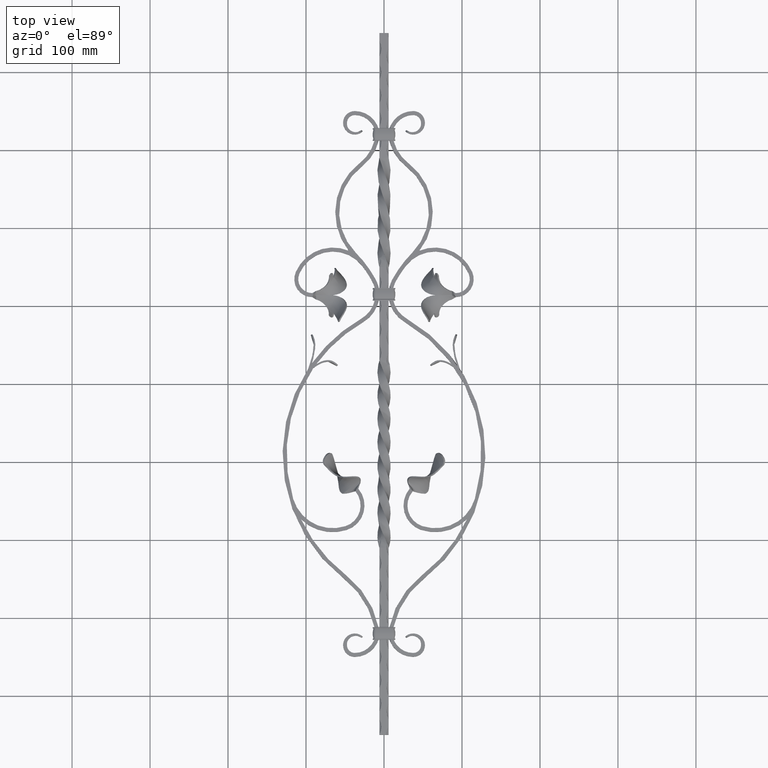
[diagram: clean part render]
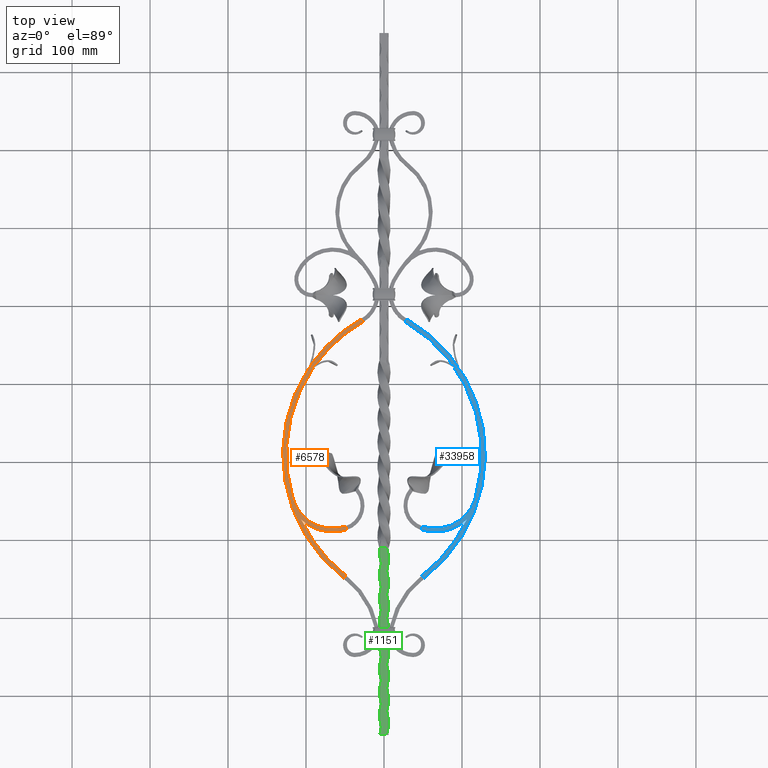
[diagram: same view with three faces highlighted in distinct colors, each labeled with its STEP entity id]
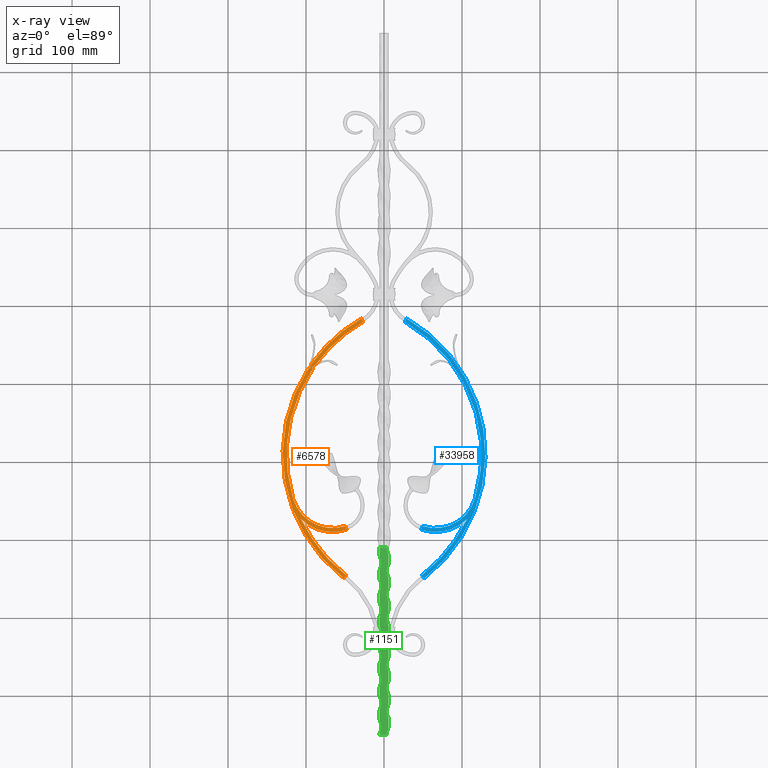
[diagram: x-ray of the same camera — body ghosted, the three highlighted faces saturated]
A machine part, top view with three faces highlighted in distinct colors.
The next image is the same camera in x-ray (body ghosted, the three faces saturated) — at least one of them is partly hidden behind the body in this view.
Their STEP definitions:

[orange] entity #6578 — the highlighted planar face has unit normal (0, 0, 1).
#59 = DIRECTION ( 'NONE',  ( -0.4972331834549501561, 0.8676169438590144445, 0.000000000000000000 ) ) ;
#482 = EDGE_CURVE ( 'NONE', #54759, #30427, #25481, .T. ) ;
#1108 = EDGE_CURVE ( 'NONE', #9635, #35715, #8890, .T. ) ;
#2405 = DIRECTION ( 'NONE',  ( -0.9563022665386825549, -0.2923798471389205678, 0.000000000000000000 ) ) ;
#2841 = CARTESIAN_POINT ( 'NONE',  ( -47.74672717694629398, -187.1293661279631237, 6.000000000000000000 ) ) ;
#3028 = DIRECTION ( 'NONE',  ( 0.000000000000000000, 0.000000000000000000, 1.000000000000000000 ) ) ;
#3937 = CARTESIAN_POINT ( 'NONE',  ( 70.62453861500259222, -90.29945903481983294, 6.000000000000000000 ) ) ;
#3974 = ORIENTED_EDGE ( 'NONE', *, *, #18180, .T. ) ;
#6578 = ADVANCED_FACE ( 'NONE', ( #25227 ), #54861, .T. ) ;
#7062 = DIRECTION ( 'NONE',  ( -0.6093817276569273300, -0.7928769828906994110, 0.000000000000000000 ) ) ;
#7070 = LINE ( 'NONE', #29316, #37571 ) ;
#7109 = CARTESIAN_POINT ( 'NONE',  ( 70.62453861500259222, -90.29945903481983294, 6.000000000000000000 ) ) ;
#7809 = EDGE_CURVE ( 'NONE', #18725, #35715, #34833, .T. ) ;
#8628 = EDGE_CURVE ( 'NONE', #46410, #54759, #15224, .T. ) ;
#8890 = CIRCLE ( 'NONE', #43589, 200.6245386149037415 ) ;
#9635 = VERTEX_POINT ( 'NONE', #48870 ) ;
#9883 = ORIENTED_EDGE ( 'NONE', *, *, #1108, .T. ) ;
#10587 = ORIENTED_EDGE ( 'NONE', *, *, #29252, .T. ) ;
#11151 = EDGE_CURVE ( 'NONE', #26390, #31978, #38905, .T. ) ;
#11298 = CARTESIAN_POINT ( 'NONE',  ( -89.23659570273460417, 23.76530580994442587, 6.000000000000000000 ) ) ;
#11328 = CARTESIAN_POINT ( 'NONE',  ( -48.58548069823670801, -245.4056529911898679, 6.000000000000000000 ) ) ;
#11384 = EDGE_CURVE ( 'NONE', #18725, #52367, #7070, .T. ) ;
#12502 = B_SPLINE_CURVE_WITH_KNOTS ( 'NONE', 3,
 ( #27622, #11298, #19304, #35977 ),
 .UNSPECIFIED., .F., .F.,
 ( 4, 4 ),
 ( 0.03132615248084846121, 0.03769082985827838794 ),
 .UNSPECIFIED. ) ;
#12675 = CARTESIAN_POINT ( 'NONE',  ( -96.95898724179710371, 19.99998500660017697, 6.000000000000000000 ) ) ;
#14213 = CARTESIAN_POINT ( 'NONE',  ( -48.58548069823672222, -245.4056529911898394, 6.000000000000000000 ) ) ;
#14224 = VECTOR ( 'NONE', #53511, 1000.000000000000000 ) ;
#14732 = EDGE_CURVE ( 'NONE', #34782, #30427, #41571, .T. ) ;
#15224 = CIRCLE ( 'NONE', #25042, 53.00000000000211742 ) ;
#15680 = AXIS2_PLACEMENT_3D ( 'NONE', #22815, #27054, #39138 ) ;
#16089 = CARTESIAN_POINT ( 'NONE',  ( 70.62453861500259222, -90.29945903481983294, 6.000000000000000000 ) ) ;
#16723 = DIRECTION ( 'NONE',  ( -0.8353092149828044155, 0.5497804246831737851, -0.000000000000000000 ) ) ;
#17862 = LINE ( 'NONE', #48102, #23154 ) ;
#18151 = ORIENTED_EDGE ( 'NONE', *, *, #41611, .F. ) ;
#18180 = EDGE_CURVE ( 'NONE', #51744, #9635, #25181, .T. ) ;
#18725 = VERTEX_POINT ( 'NONE', #37698 ) ;
#19304 = CARTESIAN_POINT ( 'NONE',  ( -90.94213846535360801, 22.48823995927978814, 6.000000000000001776 ) ) ;
#20041 = ORIENTED_EDGE ( 'NONE', *, *, #8628, .F. ) ;
#20220 = CIRCLE ( 'NONE', #26485, 195.6245386149036847 ) ;
#20361 = DIRECTION ( 'NONE',  ( -0.4972331834549500451, 0.8676169438590143335, 0.000000000000000000 ) ) ;
#20576 = CARTESIAN_POINT ( 'NONE',  ( -93.48625912757735534, 23.78947908224890995, 6.000000000000000000 ) ) ;
#21619 = ORIENTED_EDGE ( 'NONE', *, *, #54484, .F. ) ;
#22668 = DIRECTION ( 'NONE',  ( -0.4972331834549501561, 0.8676169438590144445, 0.000000000000000000 ) ) ;
#22815 = CARTESIAN_POINT ( 'NONE',  ( -65.76763092655829723, -131.9999998333333338, 6.000000000000000000 ) ) ;
#22950 = DIRECTION ( 'NONE',  ( -0.4972331834549501561, 0.8676169438590142224, 0.000000000000000000 ) ) ;
#23154 = VECTOR ( 'NONE', #38825, 1000.000000000000114 ) ;
#23182 = VECTOR ( 'NONE', #22950, 1000.000000000000114 ) ;
#23574 = DIRECTION ( 'NONE',  ( 0.000000000000000000, 0.000000000000000000, 1.000000000000000000 ) ) ;
#23839 = CARTESIAN_POINT ( 'NONE',  ( -116.4516510530138902, -147.4961317316671909, 6.000000000000000000 ) ) ;
#23895 = CARTESIAN_POINT ( 'NONE',  ( -49.30025336225403265, -182.3768345508388791, 6.000000000000000000 ) ) ;
#25042 = AXIS2_PLACEMENT_3D ( 'NONE', #35982, #23574, #2405 ) ;
#25090 = ORIENTED_EDGE ( 'NONE', *, *, #49567, .T. ) ;
#25181 = LINE ( 'NONE', #26827, #23182 ) ;
#25227 = FACE_OUTER_BOUND ( 'NONE', #34413, .T. ) ;
#25481 = LINE ( 'NONE', #2841, #14224 ) ;
#25625 = VECTOR ( 'NONE', #7062, 1000.000000000000000 ) ;
#26170 = AXIS2_PLACEMENT_3D ( 'NONE', #3937, #29580, #59 ) ;
#26390 = VERTEX_POINT ( 'NONE', #14213 ) ;
#26485 = AXIS2_PLACEMENT_3D ( 'NONE', #39735, #44015, #35116 ) ;
#26827 = CARTESIAN_POINT ( 'NONE',  ( -26.64647348231380519, 79.42770530193665479, 6.000000000000000000 ) ) ;
#27023 = CARTESIAN_POINT ( 'NONE',  ( -92.59144619845592672, 21.12764971388410018, 6.000000000000000888 ) ) ;
#27038 = CIRCLE ( 'NONE', #49179, 195.6245386149036847 ) ;
#27054 = DIRECTION ( 'NONE',  ( 0.000000000000000000, 0.000000000000000000, 1.000000000000000000 ) ) ;
#27336 = ORIENTED_EDGE ( 'NONE', *, *, #11384, .T. ) ;
#27622 = CARTESIAN_POINT ( 'NONE',  ( -87.45822995308775205, 24.93420961345997711, 6.000000000000000000 ) ) ;
#27827 = ORIENTED_EDGE ( 'NONE', *, *, #11151, .F. ) ;
#28413 = EDGE_CURVE ( 'NONE', #34782, #26390, #27038, .T. ) ;
#29252 = EDGE_CURVE ( 'NONE', #52367, #31978, #44247, .T. ) ;
#29258 = CARTESIAN_POINT ( 'NONE',  ( -26.64647348239179792, 79.42770530207266688, 6.000000000000000000 ) ) ;
#29316 = CARTESIAN_POINT ( 'NONE',  ( -96.95898724173160588, 19.99998500655711453, 6.000000000000000000 ) ) ;
#29580 = DIRECTION ( 'NONE',  ( 0.000000000000000000, 0.000000000000000000, 1.000000000000000000 ) ) ;
#30195 = VERTEX_POINT ( 'NONE', #46818 ) ;
#30427 = VERTEX_POINT ( 'NONE', #41754 ) ;
#30600 = AXIS2_PLACEMENT_3D ( 'NONE', #29258, #42391, #46852 ) ;
#31776 = EDGE_CURVE ( 'NONE', #30195, #46410, #20220, .T. ) ;
#31978 = VERTEX_POINT ( 'NONE', #36758 ) ;
#32391 = ORIENTED_EDGE ( 'NONE', *, *, #28413, .F. ) ;
#32709 = DIRECTION ( 'NONE',  ( -0.4972331834549500451, 0.8676169438590143335, 0.000000000000000000 ) ) ;
#33127 = DIRECTION ( 'NONE',  ( 0.000000000000000000, 0.000000000000000000, 1.000000000000000000 ) ) ;
#34413 = EDGE_LOOP ( 'NONE', ( #21619, #18151, #3974, #9883, #37972, #27336, #10587, #27827, #32391, #41704, #45074, #20041, #48738, #25090 ) ) ;
#34782 = VERTEX_POINT ( 'NONE', #48142 ) ;
#34833 = B_SPLINE_CURVE_WITH_KNOTS ( 'NONE', 3,
 ( #46691, #54507, #20576, #42032 ),
 .UNSPECIFIED., .F., .F.,
 ( 4, 4 ),
 ( 0.000000000000000000, 0.007814242277812792625 ),
 .UNSPECIFIED. ) ;
#35116 = DIRECTION ( 'NONE',  ( -0.4972331834549501561, 0.8676169438590144445, 0.000000000000000000 ) ) ;
#35715 = VERTEX_POINT ( 'NONE', #52292 ) ;
#35977 = CARTESIAN_POINT ( 'NONE',  ( -92.59144619845592672, 21.12764971388410018, 6.000000000000000888 ) ) ;
#35982 = CARTESIAN_POINT ( 'NONE',  ( -65.76763092655829723, -131.9999998333333338, 6.000000000000000000 ) ) ;
#36758 = CARTESIAN_POINT ( 'NONE',  ( -51.63238933652131379, -249.3700379056433860, 6.000000000000000000 ) ) ;
#37571 = VECTOR ( 'NONE', #16723, 1000.000000000000227 ) ;
#37698 = CARTESIAN_POINT ( 'NONE',  ( -95.28836881176600571, 18.90042415719076985, 6.000000000000000000 ) ) ;
#37972 = ORIENTED_EDGE ( 'NONE', *, *, #7809, .F. ) ;
#38825 = DIRECTION ( 'NONE',  ( -0.8258892643461988037, 0.5638323536634756161, -0.000000000000000000 ) ) ;
#38905 = LINE ( 'NONE', #11328, #25625 ) ;
#39138 = DIRECTION ( 'NONE',  ( -0.9563022665387032051, -0.2923798471388528442, 0.000000000000000000 ) ) ;
#39735 = CARTESIAN_POINT ( 'NONE',  ( 70.62453861500259222, -90.29945903481983294, 6.000000000000000000 ) ) ;
#40218 = VERTEX_POINT ( 'NONE', #46970 ) ;
#41571 = CIRCLE ( 'NONE', #15680, 58.00000000000212452 ) ;
#41611 = EDGE_CURVE ( 'NONE', #51744, #40218, #52974, .T. ) ;
#41704 = ORIENTED_EDGE ( 'NONE', *, *, #14732, .T. ) ;
#41754 = CARTESIAN_POINT ( 'NONE',  ( -47.74672717694629398, -187.1293661279631522, 6.000000000000000000 ) ) ;
#42032 = CARTESIAN_POINT ( 'NONE',  ( -92.66564212601250006, 26.26177966832284838, 6.000000000000001776 ) ) ;
#42391 = DIRECTION ( 'NONE',  ( 0.000000000000000000, 0.000000000000000000, 1.000000000000000000 ) ) ;
#43240 = CARTESIAN_POINT ( 'NONE',  ( -26.64647348231383006, 79.42770530193668321, 6.000000000000000000 ) ) ;
#43498 = AXIS2_PLACEMENT_3D ( 'NONE', #7109, #3028, #32709 ) ;
#43589 = AXIS2_PLACEMENT_3D ( 'NONE', #16089, #33127, #20361 ) ;
#44015 = DIRECTION ( 'NONE',  ( 0.000000000000000000, 0.000000000000000000, 1.000000000000000000 ) ) ;
#44156 = CARTESIAN_POINT ( 'NONE',  ( 70.62453861500259222, -90.29945903481983294, 6.000000000000000000 ) ) ;
#44247 = CIRCLE ( 'NONE', #43498, 200.6245386149037415 ) ;
#45074 = ORIENTED_EDGE ( 'NONE', *, *, #482, .F. ) ;
#46410 = VERTEX_POINT ( 'NONE', #23839 ) ;
#46691 = CARTESIAN_POINT ( 'NONE',  ( -95.28836881176600571, 18.90042415719076985, 6.000000000000000000 ) ) ;
#46818 = CARTESIAN_POINT ( 'NONE',  ( -90.93966766976352289, 19.99998500655714295, 6.000000000000000888 ) ) ;
#46852 = DIRECTION ( 'NONE',  ( 1.000000000000000000, 0.000000000000000000, -0.000000000000000000 ) ) ;
#46970 = CARTESIAN_POINT ( 'NONE',  ( -87.45822995308775205, 24.93420961345997711, 6.000000000000000000 ) ) ;
#48071 = DIRECTION ( 'NONE',  ( 0.000000000000000000, 0.000000000000000000, 1.000000000000000000 ) ) ;
#48102 = CARTESIAN_POINT ( 'NONE',  ( -92.59144619845592672, 21.12764971388409663, 6.000000000000000000 ) ) ;
#48142 = CARTESIAN_POINT ( 'NONE',  ( -106.5441543421316908, -173.2465165121929545, 6.000000000000000000 ) ) ;
#48738 = ORIENTED_EDGE ( 'NONE', *, *, #31776, .F. ) ;
#48870 = CARTESIAN_POINT ( 'NONE',  ( -29.13263939958855531, 83.76579002123176565, 6.000000000000000000 ) ) ;
#49179 = AXIS2_PLACEMENT_3D ( 'NONE', #44156, #48071, #22668 ) ;
#49567 = EDGE_CURVE ( 'NONE', #30195, #53201, #17862, .T. ) ;
#51744 = VERTEX_POINT ( 'NONE', #43240 ) ;
#52292 = CARTESIAN_POINT ( 'NONE',  ( -92.66564212601250006, 26.26177966832284838, 6.000000000000001776 ) ) ;
#52367 = VERTEX_POINT ( 'NONE', #12675 ) ;
#52974 = CIRCLE ( 'NONE', #26170, 195.6245386149036847 ) ;
#53201 = VERTEX_POINT ( 'NONE', #27023 ) ;
#53511 = DIRECTION ( 'NONE',  ( 0.3107052370615501213, -0.9505063154248507562, 0.000000000000000000 ) ) ;
#54484 = EDGE_CURVE ( 'NONE', #40218, #53201, #12502, .T. ) ;
#54507 = CARTESIAN_POINT ( 'NONE',  ( -94.37040545000472491, 21.33911354149103445, 6.000000000000000000 ) ) ;
#54759 = VERTEX_POINT ( 'NONE', #23895 ) ;
#54861 = PLANE ( 'NONE',  #30600 ) ;

[blue] entity #33958 — the highlighted planar face has unit normal (0, 0, 1).
#468 = CARTESIAN_POINT ( 'NONE',  ( 106.5441543421316624, -173.2465165121929260, 6.000000000000000000 ) ) ;
#741 = DIRECTION ( 'NONE',  ( -0.000000000000000000, -0.000000000000000000, -1.000000000000000000 ) ) ;
#2810 = DIRECTION ( 'NONE',  ( 0.4972331834549501561, 0.8676169438590144445, 0.000000000000000000 ) ) ;
#3513 = FACE_OUTER_BOUND ( 'NONE', #28210, .T. ) ;
#3666 = VECTOR ( 'NONE', #46868, 1000.000000000000000 ) ;
#4290 = DIRECTION ( 'NONE',  ( -0.000000000000000000, -0.000000000000000000, -1.000000000000000000 ) ) ;
#5988 = CARTESIAN_POINT ( 'NONE',  ( 51.63238933652131379, -249.3700379056433860, 6.000000000000000000 ) ) ;
#6979 = VERTEX_POINT ( 'NONE', #27120 ) ;
#7016 = CARTESIAN_POINT ( 'NONE',  ( 116.4516510530138902, -147.4961317316671909, 6.000000000000000000 ) ) ;
#7191 = AXIS2_PLACEMENT_3D ( 'NONE', #51595, #51404, #17662 ) ;
#8293 = ORIENTED_EDGE ( 'NONE', *, *, #51730, .T. ) ;
#8737 = DIRECTION ( 'NONE',  ( 0.4972331834549500451, 0.8676169438590143335, 0.000000000000000000 ) ) ;
#9724 = VERTEX_POINT ( 'NONE', #5988 ) ;
#11940 = CARTESIAN_POINT ( 'NONE',  ( 26.64647348231383006, 79.42770530193668321, 6.000000000000000000 ) ) ;
#12561 = EDGE_CURVE ( 'NONE', #43610, #9724, #21167, .T. ) ;
#13635 = VECTOR ( 'NONE', #50836, 1000.000000000000114 ) ;
#14415 = ORIENTED_EDGE ( 'NONE', *, *, #26602, .T. ) ;
#15491 = CARTESIAN_POINT ( 'NONE',  ( 47.74672717694629398, -187.1293661279631522, 6.000000000000000000 ) ) ;
#15549 = AXIS2_PLACEMENT_3D ( 'NONE', #53292, #52924, #35473 ) ;
#17616 = DIRECTION ( 'NONE',  ( 1.000000000000000000, 0.000000000000000000, -0.000000000000000000 ) ) ;
#17643 = AXIS2_PLACEMENT_3D ( 'NONE', #26104, #38537, #17616 ) ;
#17662 = DIRECTION ( 'NONE',  ( 0.9563022665386825549, -0.2923798471389205678, 0.000000000000000000 ) ) ;
#17680 = CARTESIAN_POINT ( 'NONE',  ( -70.62453861500259222, -90.29945903481983294, 6.000000000000000000 ) ) ;
#19601 = LINE ( 'NONE', #42089, #13635 ) ;
#19702 = CIRCLE ( 'NONE', #7191, 53.00000000000211742 ) ;
#21167 = CIRCLE ( 'NONE', #24828, 200.6245386149037415 ) ;
#21538 = LINE ( 'NONE', #52675, #36808 ) ;
#22245 = PLANE ( 'NONE',  #17643 ) ;
#22520 = AXIS2_PLACEMENT_3D ( 'NONE', #53850, #37308, #2810 ) ;
#22806 = DIRECTION ( 'NONE',  ( 0.3107052370615501213, 0.9505063154248507562, -0.000000000000000000 ) ) ;
#23678 = ORIENTED_EDGE ( 'NONE', *, *, #52083, .F. ) ;
#24684 = EDGE_CURVE ( 'NONE', #26233, #37841, #30571, .T. ) ;
#24828 = AXIS2_PLACEMENT_3D ( 'NONE', #17680, #741, #8737 ) ;
#25801 = CIRCLE ( 'NONE', #33624, 195.6245386149036847 ) ;
#26104 = CARTESIAN_POINT ( 'NONE',  ( 26.64647348239179792, 79.42770530207266688, 6.000000000000000000 ) ) ;
#26233 = VERTEX_POINT ( 'NONE', #468 ) ;
#26602 = EDGE_CURVE ( 'NONE', #44776, #51973, #25801, .T. ) ;
#27120 = CARTESIAN_POINT ( 'NONE',  ( 49.30025336225403265, -182.3768345508388791, 6.000000000000000000 ) ) ;
#28210 = EDGE_LOOP ( 'NONE', ( #23678, #40222, #47074, #14415, #8293, #28935, #32676, #30879 ) ) ;
#28935 = ORIENTED_EDGE ( 'NONE', *, *, #45858, .F. ) ;
#29524 = CARTESIAN_POINT ( 'NONE',  ( 29.13263939958855531, 83.76579002123176565, 6.000000000000000000 ) ) ;
#29745 = DIRECTION ( 'NONE',  ( 0.4972331834549501561, 0.8676169438590144445, 0.000000000000000000 ) ) ;
#30514 = CARTESIAN_POINT ( 'NONE',  ( 48.58548069823672222, -245.4056529911898394, 6.000000000000000000 ) ) ;
#30571 = CIRCLE ( 'NONE', #15549, 58.00000000000212452 ) ;
#30879 = ORIENTED_EDGE ( 'NONE', *, *, #45085, .T. ) ;
#32676 = ORIENTED_EDGE ( 'NONE', *, *, #24684, .F. ) ;
#33624 = AXIS2_PLACEMENT_3D ( 'NONE', #33819, #4290, #29745 ) ;
#33819 = CARTESIAN_POINT ( 'NONE',  ( -70.62453861500259222, -90.29945903481983294, 6.000000000000000000 ) ) ;
#33958 = ADVANCED_FACE ( 'NONE', ( #3513 ), #22245, .T. ) ;
#35473 = DIRECTION ( 'NONE',  ( 0.9563022665387032051, -0.2923798471388528442, 0.000000000000000000 ) ) ;
#36808 = VECTOR ( 'NONE', #22806, 1000.000000000000000 ) ;
#37308 = DIRECTION ( 'NONE',  ( -0.000000000000000000, -0.000000000000000000, -1.000000000000000000 ) ) ;
#37841 = VERTEX_POINT ( 'NONE', #15491 ) ;
#38537 = DIRECTION ( 'NONE',  ( 0.000000000000000000, 0.000000000000000000, 1.000000000000000000 ) ) ;
#40222 = ORIENTED_EDGE ( 'NONE', *, *, #12561, .F. ) ;
#42089 = CARTESIAN_POINT ( 'NONE',  ( 26.64647348231380519, 79.42770530193665479, 6.000000000000000000 ) ) ;
#42410 = CARTESIAN_POINT ( 'NONE',  ( 48.58548069823670801, -245.4056529911898679, 6.000000000000000000 ) ) ;
#43610 = VERTEX_POINT ( 'NONE', #29524 ) ;
#44776 = VERTEX_POINT ( 'NONE', #11940 ) ;
#45085 = EDGE_CURVE ( 'NONE', #26233, #55063, #50833, .T. ) ;
#45654 = EDGE_CURVE ( 'NONE', #43610, #44776, #19601, .T. ) ;
#45858 = EDGE_CURVE ( 'NONE', #37841, #6979, #21538, .T. ) ;
#46868 = DIRECTION ( 'NONE',  ( -0.6093817276569273300, 0.7928769828906994110, -0.000000000000000000 ) ) ;
#47074 = ORIENTED_EDGE ( 'NONE', *, *, #45654, .T. ) ;
#50833 = CIRCLE ( 'NONE', #22520, 195.6245386149036847 ) ;
#50836 = DIRECTION ( 'NONE',  ( -0.4972331834549501561, -0.8676169438590142224, -0.000000000000000000 ) ) ;
#51404 = DIRECTION ( 'NONE',  ( -0.000000000000000000, -0.000000000000000000, -1.000000000000000000 ) ) ;
#51595 = CARTESIAN_POINT ( 'NONE',  ( 65.76763092655829723, -131.9999998333333338, 6.000000000000000000 ) ) ;
#51730 = EDGE_CURVE ( 'NONE', #51973, #6979, #19702, .T. ) ;
#51973 = VERTEX_POINT ( 'NONE', #7016 ) ;
#52083 = EDGE_CURVE ( 'NONE', #9724, #55063, #52868, .T. ) ;
#52675 = CARTESIAN_POINT ( 'NONE',  ( 47.74672717694629398, -187.1293661279631237, 6.000000000000000000 ) ) ;
#52868 = LINE ( 'NONE', #42410, #3666 ) ;
#52924 = DIRECTION ( 'NONE',  ( -0.000000000000000000, -0.000000000000000000, -1.000000000000000000 ) ) ;
#53292 = CARTESIAN_POINT ( 'NONE',  ( 65.76763092655829723, -131.9999998333333338, 6.000000000000000000 ) ) ;
#53850 = CARTESIAN_POINT ( 'NONE',  ( -70.62453861500259222, -90.29945903481983294, 6.000000000000000000 ) ) ;
#55063 = VERTEX_POINT ( 'NONE', #30514 ) ;

[green] entity #1151 — the highlighted planar face has unit normal (-0, -0, -1).
#310 = B_SPLINE_CURVE_WITH_KNOTS ( 'NONE', 3,
 ( #33678, #50573, #12901, #8441 ),
 .UNSPECIFIED., .F., .F.,
 ( 4, 4 ),
 ( 0.000000000000000000, 0.04166666651396455645 ),
 .UNSPECIFIED. ) ;
#435 = ORIENTED_EDGE ( 'NONE', *, *, #40388, .F. ) ;
#533 = EDGE_CURVE ( 'NONE', #1629, #34175, #53993, .T. ) ;
#865 = CARTESIAN_POINT ( 'NONE',  ( -5.999999999685654117, -329.9999999999994316, 6.000000000314337001 ) ) ;
#1151 = ADVANCED_FACE ( 'NONE', ( #45370 ), #34916, .F. ) ;
#1367 = DIRECTION ( 'NONE',  ( -1.000000000000000000, 0.000000000000000000, 5.239015920434916151E-11 ) ) ;
#1430 = CARTESIAN_POINT ( 'NONE',  ( -5.999999999685655006, -303.3333333333332575, 6.000000000314337001 ) ) ;
#1629 = VERTEX_POINT ( 'NONE', #45591 ) ;
#2092 = EDGE_CURVE ( 'NONE', #10571, #44928, #7399, .T. ) ;
#2246 = CARTESIAN_POINT ( 'NONE',  ( 24.75000000031412384, -450.0000000000000000, 5.999999998703585469 ) ) ;
#2273 = CARTESIAN_POINT ( 'NONE',  ( 6.000000000314342330, -376.6666666666669130, 5.999999999685655006 ) ) ;
#2474 = DIRECTION ( 'NONE',  ( -1.000000000000000000, -5.224578939412492272E-15, 5.239015920434916151E-11 ) ) ;
#2815 = CARTESIAN_POINT ( 'NONE',  ( -24.74999999968595077, -410.0000000000000000, 6.000000001296407426 ) ) ;
#3159 = EDGE_CURVE ( 'NONE', #18377, #26074, #12781, .T. ) ;
#3668 = EDGE_CURVE ( 'NONE', #12205, #30175, #37630, .T. ) ;
#3803 = CARTESIAN_POINT ( 'NONE',  ( 0.3333333336475076125, -450.0000000000000568, 5.999999999982533083 ) ) ;
#3811 = CIRCLE ( 'NONE', #11552, 21.25000000000003553 ) ;
#3894 = EDGE_CURVE ( 'NONE', #23947, #10571, #17453, .T. ) ;
#3987 = CARTESIAN_POINT ( 'NONE',  ( -24.74999999968594722, -259.9999999999999432, 6.000000001296407426 ) ) ;
#4227 = EDGE_CURVE ( 'NONE', #21863, #52392, #310, .T. ) ;
#4284 = CIRCLE ( 'NONE', #15147, 21.25000000000003908 ) ;
#4368 = EDGE_CURVE ( 'NONE', #7644, #6498, #30042, .T. ) ;
#4527 = CARTESIAN_POINT ( 'NONE',  ( -24.74999999968595077, -379.9999999999999432, 6.000000001296407426 ) ) ;
#4535 = CARTESIAN_POINT ( 'NONE',  ( 6.000000000314090087, -320.0000000000000000, 5.999999999685901919 ) ) ;
#4567 = DIRECTION ( 'NONE',  ( -1.000000000000000000, 5.224578939412492272E-15, 5.239015920434916151E-11 ) ) ;
#4573 = DIRECTION ( 'NONE',  ( 5.239016895960169455E-11, 8.731861808807583131E-21, 1.000000000000000000 ) ) ;
#4627 = ORIENTED_EDGE ( 'NONE', *, *, #23577, .T. ) ;
#5164 = AXIS2_PLACEMENT_3D ( 'NONE', #14761, #14578, #36256 ) ;
#5309 = CARTESIAN_POINT ( 'NONE',  ( 6.000000000314090975, -229.9999999999999147, 5.999999999685901919 ) ) ;
#5603 = CARTESIAN_POINT ( 'NONE',  ( -5.999999999685655006, -269.9999999999994884, 6.000000000314337001 ) ) ;
#6348 = ORIENTED_EDGE ( 'NONE', *, *, #22567, .T. ) ;
#6498 = VERTEX_POINT ( 'NONE', #49683 ) ;
#6725 = EDGE_LOOP ( 'NONE', ( #51222, #21312, #14321, #48148, #51432, #19007, #9171, #35343, #32463, #43891, #22686, #33004, #29632, #31892, #18436, #435, #18453, #8941, #41556, #4627, #28421, #27004, #24546, #51600, #31243, #36575, #50743, #7362, #16371, #25651, #18394, #6348, #53538, #9634, #33274 ) ) ;
#7112 = DIRECTION ( 'NONE',  ( -1.000000000000000000, 2.612289469706246136E-15, 5.239015920434916151E-11 ) ) ;
#7145 = B_SPLINE_CURVE_WITH_KNOTS ( 'NONE', 3,
 ( #23266, #14361, #2273, #52409 ),
 .UNSPECIFIED., .F., .F.,
 ( 4, 4 ),
 ( 0.6666666666666655194, 0.7083333333333352577 ),
 .UNSPECIFIED. ) ;
#7362 = ORIENTED_EDGE ( 'NONE', *, *, #40992, .T. ) ;
#7399 = B_SPLINE_CURVE_WITH_KNOTS ( 'NONE', 3,
 ( #51356, #30023, #21684, #33540 ),
 .UNSPECIFIED., .F., .F.,
 ( 4, 4 ),
 ( 0.9166666666666647423, 0.9583333333333349247 ),
 .UNSPECIFIED. ) ;
#7644 = VERTEX_POINT ( 'NONE', #48596 ) ;
#7686 = EDGE_CURVE ( 'NONE', #13722, #54913, #43085, .T. ) ;
#8339 = B_SPLINE_CURVE_WITH_KNOTS ( 'NONE', 3,
 ( #42679, #8364, #12631, #21552 ),
 .UNSPECIFIED., .F., .F.,
 ( 4, 4 ),
 ( 0.5416666666666652974, 0.5833333333333352577 ),
 .UNSPECIFIED. ) ;
#8364 = CARTESIAN_POINT ( 'NONE',  ( 6.000000000314342330, -343.3333333333332575, 5.999999999685655006 ) ) ;
#8441 = CARTESIAN_POINT ( 'NONE',  ( -5.999999999685909913, -219.9999999999999147, 6.000000000314091864 ) ) ;
#8780 = CARTESIAN_POINT ( 'NONE',  ( -5.999999999685911689, -340.0000000000000000, 6.000000000314091864 ) ) ;
#8783 = CARTESIAN_POINT ( 'NONE',  ( -5.999999999685652341, -246.6666666782440132, 6.000000000314337001 ) ) ;
#8837 = B_SPLINE_CURVE_WITH_KNOTS ( 'NONE', 3,
 ( #16244, #41975, #8783, #34757 ),
 .UNSPECIFIED., .F., .F.,
 ( 4, 4 ),
 ( 0.1250000001374204639, 0.1666666666597225455 ),
 .UNSPECIFIED. ) ;
#8899 = EDGE_CURVE ( 'NONE', #30175, #1629, #3811, .T. ) ;
#8941 = ORIENTED_EDGE ( 'NONE', *, *, #22546, .F. ) ;
#9171 = ORIENTED_EDGE ( 'NONE', *, *, #33031, .F. ) ;
#9634 = ORIENTED_EDGE ( 'NONE', *, *, #52764, .T. ) ;
#9721 = CARTESIAN_POINT ( 'NONE',  ( 6.000000000314343218, -313.3333333333332575, 5.999999999685655894 ) ) ;
#9735 = DIRECTION ( 'NONE',  ( -5.239016895960169455E-11, -8.731861808807583131E-21, -1.000000000000000000 ) ) ;
#10075 = B_SPLINE_CURVE_WITH_KNOTS ( 'NONE', 3,
 ( #865, #21320, #50992, #25545 ),
 .UNSPECIFIED., .F., .F.,
 ( 4, 4 ),
 ( 0.4999999999958301689, 0.5416666666628481286 ),
 .UNSPECIFIED. ) ;
#10571 = VERTEX_POINT ( 'NONE', #34037 ) ;
#10890 = CIRCLE ( 'NONE', #22272, 21.25000000000003553 ) ;
#10924 = EDGE_CURVE ( 'NONE', #39178, #16719, #17054, .T. ) ;
#10998 = CARTESIAN_POINT ( 'NONE',  ( 6.000000000314342330, -403.3333333333331439, 5.999999999685655006 ) ) ;
#11155 = CARTESIAN_POINT ( 'NONE',  ( -24.74999999968595077, -440.0000000000000000, 6.000000001296407426 ) ) ;
#11322 = CARTESIAN_POINT ( 'NONE',  ( 6.000000000314343218, -226.6666666783955861, 5.999999999685655006 ) ) ;
#11332 = DIRECTION ( 'NONE',  ( -1.000000000000000000, 0.000000000000000000, 5.239015920434916151E-11 ) ) ;
#11552 = AXIS2_PLACEMENT_3D ( 'NONE', #12383, #4573, #34270 ) ;
#11946 = AXIS2_PLACEMENT_3D ( 'NONE', #29283, #33175, #28559 ) ;
#12205 = VERTEX_POINT ( 'NONE', #34011 ) ;
#12383 = CARTESIAN_POINT ( 'NONE',  ( 24.75000000031412739, -269.9999999999999432, 5.999999998703585469 ) ) ;
#12467 = CARTESIAN_POINT ( 'NONE',  ( 24.75000000031412739, -239.9999999999999432, 5.999999998703585469 ) ) ;
#12631 = CARTESIAN_POINT ( 'NONE',  ( 6.000000000314342330, -346.6666666666668561, 5.999999999685655006 ) ) ;
#12667 = AXIS2_PLACEMENT_3D ( 'NONE', #23543, #27796, #41125 ) ;
#12781 = CIRCLE ( 'NONE', #11946, 21.25000000000003553 ) ;
#12901 = CARTESIAN_POINT ( 'NONE',  ( -5.999999999685655006, -216.6666666441792302, 6.000000000314337001 ) ) ;
#12954 = CARTESIAN_POINT ( 'NONE',  ( 6.000000000314089199, -350.0000000000000568, 5.999999999685901919 ) ) ;
#12984 = AXIS2_PLACEMENT_3D ( 'NONE', #2815, #24530, #54218 ) ;
#13463 = CARTESIAN_POINT ( 'NONE',  ( -24.74999999968594722, -290.0000000000000000, 6.000000001296407426 ) ) ;
#13540 = CARTESIAN_POINT ( 'NONE',  ( -5.999999999685654117, -366.6666666666667993, 6.000000000314337001 ) ) ;
#13623 = AXIS2_PLACEMENT_3D ( 'NONE', #20390, #32619, #15582 ) ;
#13722 = VERTEX_POINT ( 'NONE', #18176 ) ;
#13899 = CARTESIAN_POINT ( 'NONE',  ( -5.999999999685910801, -310.0000000000000000, 6.000000000314091864 ) ) ;
#13985 = CARTESIAN_POINT ( 'NONE',  ( -24.74999999968594722, -320.0000000000000000, 6.000000001296407426 ) ) ;
#14141 = CARTESIAN_POINT ( 'NONE',  ( 6.000000000314342330, -283.3333333333331439, 5.999999999685654117 ) ) ;
#14321 = ORIENTED_EDGE ( 'NONE', *, *, #3894, .F. ) ;
#14361 = CARTESIAN_POINT ( 'NONE',  ( 6.000000000314342330, -373.3333333333333144, 5.999999999685655006 ) ) ;
#14578 = DIRECTION ( 'NONE',  ( -5.239016895960169455E-11, -8.731861808807583131E-21, -1.000000000000000000 ) ) ;
#14761 = CARTESIAN_POINT ( 'NONE',  ( -24.74999999968594722, -229.9999999999999147, 6.000000001296407426 ) ) ;
#15147 = AXIS2_PLACEMENT_3D ( 'NONE', #3987, #42411, #33708 ) ;
#15264 = AXIS2_PLACEMENT_3D ( 'NONE', #15656, #19743, #2474 ) ;
#15582 = DIRECTION ( 'NONE',  ( -1.000000000000000000, -2.612289469706246136E-15, 5.239015920434916151E-11 ) ) ;
#15656 = CARTESIAN_POINT ( 'NONE',  ( 24.75000000031412739, -420.0000000000000000, 5.999999998703585469 ) ) ;
#15736 = CARTESIAN_POINT ( 'NONE',  ( -5.999999999685655894, -393.3333333333330870, 6.000000000314337001 ) ) ;
#15756 = CARTESIAN_POINT ( 'NONE',  ( 6.000000000314343218, -369.9999999999997158, 5.999999999685655894 ) ) ;
#16243 = VERTEX_POINT ( 'NONE', #36167 ) ;
#16244 = CARTESIAN_POINT ( 'NONE',  ( -5.999999999685656782, -240.0000000347312721, 6.000000000314337001 ) ) ;
#16305 = CARTESIAN_POINT ( 'NONE',  ( -5.999999999685655006, -450.0000000000000000, 5.999999944758781290 ) ) ;
#16371 = ORIENTED_EDGE ( 'NONE', *, *, #40664, .T. ) ;
#16555 = B_SPLINE_CURVE_WITH_KNOTS ( 'NONE', 3,
 ( #16305, #32789, #3803, #16669 ),
 .UNSPECIFIED., .F., .F.,
 ( 4, 4 ),
 ( 0.000000000000000000, 0.7916666776620160384 ),
 .UNSPECIFIED. ) ;
#16669 = CARTESIAN_POINT ( 'NONE',  ( 3.500000000314088755, -450.0000000000000000, 5.999999999816876262 ) ) ;
#16719 = VERTEX_POINT ( 'NONE', #42358 ) ;
#16797 = LINE ( 'NONE', #20091, #25374 ) ;
#17008 = DIRECTION ( 'NONE',  ( -5.239016895960169455E-11, -8.731861808807583131E-21, -1.000000000000000000 ) ) ;
#17054 = CIRCLE ( 'NONE', #48999, 21.25000000000003908 ) ;
#17273 = EDGE_CURVE ( 'NONE', #54913, #23947, #52397, .T. ) ;
#17282 = B_SPLINE_CURVE_WITH_KNOTS ( 'NONE', 3,
 ( #27031, #1430, #22963, #13899 ),
 .UNSPECIFIED., .F., .F.,
 ( 4, 4 ),
 ( 0.3749999999947880025, 0.4166666666618069614 ),
 .UNSPECIFIED. ) ;
#17453 = CIRCLE ( 'NONE', #15264, 21.25000000000003553 ) ;
#17454 = CARTESIAN_POINT ( 'NONE',  ( -5.999999999685655006, -359.9999999999994884, 6.000000000314337001 ) ) ;
#17486 = VERTEX_POINT ( 'NONE', #34531 ) ;
#17530 = CARTESIAN_POINT ( 'NONE',  ( 6.000000000314088311, -440.0000000000000000, 5.999999999685901919 ) ) ;
#17551 = CARTESIAN_POINT ( 'NONE',  ( 6.000000000314342330, -309.9999999999996021, 5.999999999685655006 ) ) ;
#18013 = EDGE_CURVE ( 'NONE', #16719, #20889, #10075, .T. ) ;
#18176 = CARTESIAN_POINT ( 'NONE',  ( 6.000000000314089199, -379.9999999999999432, 5.999999999685901919 ) ) ;
#18228 = CIRCLE ( 'NONE', #19723, 21.25000000000003553 ) ;
#18377 = VERTEX_POINT ( 'NONE', #4535 ) ;
#18394 = ORIENTED_EDGE ( 'NONE', *, *, #20412, .T. ) ;
#18434 = DIRECTION ( 'NONE',  ( -5.239016895960169455E-11, -8.731861808807583131E-21, -1.000000000000000000 ) ) ;
#18436 = ORIENTED_EDGE ( 'NONE', *, *, #29277, .F. ) ;
#18453 = ORIENTED_EDGE ( 'NONE', *, *, #24862, .F. ) ;
#18979 = EDGE_CURVE ( 'NONE', #44928, #39638, #45413, .T. ) ;
#19007 = ORIENTED_EDGE ( 'NONE', *, *, #51019, .F. ) ;
#19574 = DIRECTION ( 'NONE',  ( 5.239016895960169455E-11, 8.731861808807583131E-21, 1.000000000000000000 ) ) ;
#19634 = CARTESIAN_POINT ( 'NONE',  ( -5.999999999685655006, -389.9999999999994316, 6.000000000314337001 ) ) ;
#19723 = AXIS2_PLACEMENT_3D ( 'NONE', #4527, #17008, #20904 ) ;
#19743 = DIRECTION ( 'NONE',  ( 5.239016895960169455E-11, 8.731861808807583131E-21, 1.000000000000000000 ) ) ;
#19767 = VERTEX_POINT ( 'NONE', #41601 ) ;
#19792 = CARTESIAN_POINT ( 'NONE',  ( -5.999999999685655006, -269.9999999999994884, 6.000000000314337001 ) ) ;
#20087 = AXIS2_PLACEMENT_3D ( 'NONE', #20126, #19574, #7112 ) ;
#20091 = CARTESIAN_POINT ( 'NONE',  ( 6.000000000314343218, -210.0000000020004336, 5.999999999685655006 ) ) ;
#20126 = CARTESIAN_POINT ( 'NONE',  ( 24.75000000031412739, -300.0000000000000000, 5.999999998703585469 ) ) ;
#20390 = CARTESIAN_POINT ( 'NONE',  ( 24.75000000031412739, -389.9999999999999432, 5.999999998703585469 ) ) ;
#20412 = EDGE_CURVE ( 'NONE', #31491, #41069, #44579, .T. ) ;
#20639 = CARTESIAN_POINT ( 'NONE',  ( -5.999999999685654117, -426.6666666666668561, 6.000000000314337001 ) ) ;
#20751 = AXIS2_PLACEMENT_3D ( 'NONE', #12467, #46249, #33806 ) ;
#20889 = VERTEX_POINT ( 'NONE', #8780 ) ;
#20904 = DIRECTION ( 'NONE',  ( -1.000000000000000000, 0.000000000000000000, 5.239015920434916151E-11 ) ) ;
#21312 = ORIENTED_EDGE ( 'NONE', *, *, #2092, .F. ) ;
#21320 = CARTESIAN_POINT ( 'NONE',  ( -5.999999999685654117, -333.3333333333330302, 6.000000000314337889 ) ) ;
#21552 = CARTESIAN_POINT ( 'NONE',  ( 6.000000000314089199, -350.0000000000000568, 5.999999999685901919 ) ) ;
#21684 = CARTESIAN_POINT ( 'NONE',  ( 6.000000000314342330, -436.6666666666667425, 5.999999999685654117 ) ) ;
#21863 = VERTEX_POINT ( 'NONE', #52457 ) ;
#21929 = VERTEX_POINT ( 'NONE', #19792 ) ;
#21981 = CARTESIAN_POINT ( 'NONE',  ( -5.999999999685910801, -279.9999999999999432, 6.000000000314091864 ) ) ;
#21992 = CARTESIAN_POINT ( 'NONE',  ( 6.000000000314090087, -259.9999999999999432, 5.999999999685901919 ) ) ;
#22179 = CARTESIAN_POINT ( 'NONE',  ( 6.000000000314343218, -316.6666666666668561, 5.999999999685656782 ) ) ;
#22253 = CIRCLE ( 'NONE', #20087, 21.25000000000003553 ) ;
#22272 = AXIS2_PLACEMENT_3D ( 'NONE', #26092, #51345, #4567 ) ;
#22351 = CARTESIAN_POINT ( 'NONE',  ( -5.999999999685655006, -276.6666666666668561, 6.000000000314336113 ) ) ;
#22546 = EDGE_CURVE ( 'NONE', #21863, #19767, #16797, .T. ) ;
#22567 = EDGE_CURVE ( 'NONE', #41069, #16243, #32681, .T. ) ;
#22686 = ORIENTED_EDGE ( 'NONE', *, *, #46385, .F. ) ;
#22963 = CARTESIAN_POINT ( 'NONE',  ( -5.999999999685655006, -306.6666666666669130, 6.000000000314337001 ) ) ;
#23162 = VERTEX_POINT ( 'NONE', #15756 ) ;
#23266 = CARTESIAN_POINT ( 'NONE',  ( 6.000000000314343218, -369.9999999999997158, 5.999999999685655894 ) ) ;
#23268 = EDGE_CURVE ( 'NONE', #38199, #39638, #16555, .T. ) ;
#23425 = DIRECTION ( 'NONE',  ( -1.000000000000000000, 2.612289469706246136E-15, 5.239015920434916151E-11 ) ) ;
#23543 = CARTESIAN_POINT ( 'NONE',  ( 24.75000000031412739, -210.0000000000000284, 5.999999998703585469 ) ) ;
#23546 = CARTESIAN_POINT ( 'NONE',  ( 6.000000000314342330, -256.6666666666666856, 5.999999999685654117 ) ) ;
#23577 = EDGE_CURVE ( 'NONE', #52392, #17486, #45890, .T. ) ;
#23947 = VERTEX_POINT ( 'NONE', #35830 ) ;
#24530 = DIRECTION ( 'NONE',  ( -5.239016895960169455E-11, -8.731861808807583131E-21, -1.000000000000000000 ) ) ;
#24546 = ORIENTED_EDGE ( 'NONE', *, *, #49520, .T. ) ;
#24862 = EDGE_CURVE ( 'NONE', #19767, #35106, #54478, .T. ) ;
#25374 = VECTOR ( 'NONE', #53855, 1000.000000000000000 ) ;
#25545 = CARTESIAN_POINT ( 'NONE',  ( -5.999999999685911689, -340.0000000000000000, 6.000000000314091864 ) ) ;
#25651 = ORIENTED_EDGE ( 'NONE', *, *, #54935, .T. ) ;
#26074 = VERTEX_POINT ( 'NONE', #45612 ) ;
#26092 = CARTESIAN_POINT ( 'NONE',  ( 24.75000000031412739, -360.0000000000000568, 5.999999998703585469 ) ) ;
#27004 = ORIENTED_EDGE ( 'NONE', *, *, #31337, .T. ) ;
#27031 = CARTESIAN_POINT ( 'NONE',  ( -5.999999999685655006, -299.9999999999994884, 6.000000000314337001 ) ) ;
#27796 = DIRECTION ( 'NONE',  ( 5.239016895960169455E-11, 8.731861808807583131E-21, 1.000000000000000000 ) ) ;
#28031 = CARTESIAN_POINT ( 'NONE',  ( 6.000000000314343218, -220.0000000351858773, 5.999999999685655006 ) ) ;
#28421 = ORIENTED_EDGE ( 'NONE', *, *, #44813, .T. ) ;
#28559 = DIRECTION ( 'NONE',  ( -1.000000000000000000, 2.612289469706246136E-15, 5.239015920434916151E-11 ) ) ;
#28710 = CARTESIAN_POINT ( 'NONE',  ( -5.999999999685911689, -399.9999999999999432, 6.000000000314091864 ) ) ;
#29170 = CARTESIAN_POINT ( 'NONE',  ( -5.999999999685910801, -310.0000000000000000, 6.000000000314091864 ) ) ;
#29277 = EDGE_CURVE ( 'NONE', #34220, #12205, #35612, .T. ) ;
#29283 = CARTESIAN_POINT ( 'NONE',  ( 24.75000000031412739, -330.0000000000000000, 5.999999998703585469 ) ) ;
#29632 = ORIENTED_EDGE ( 'NONE', *, *, #8899, .F. ) ;
#30023 = CARTESIAN_POINT ( 'NONE',  ( 6.000000000314342330, -433.3333333333331439, 5.999999999685654117 ) ) ;
#30042 = CIRCLE ( 'NONE', #52217, 21.25000000000003908 ) ;
#30175 = VERTEX_POINT ( 'NONE', #21992 ) ;
#31243 = ORIENTED_EDGE ( 'NONE', *, *, #38573, .T. ) ;
#31337 = EDGE_CURVE ( 'NONE', #41389, #21929, #4284, .T. ) ;
#31491 = VERTEX_POINT ( 'NONE', #52804 ) ;
#31868 = B_SPLINE_CURVE_WITH_KNOTS ( 'NONE', 3,
 ( #28031, #49187, #11322, #32091 ),
 .UNSPECIFIED., .F., .F.,
 ( 4, 4 ),
 ( 0.04166666681327445276, 0.08333333333333520221 ),
 .UNSPECIFIED. ) ;
#31892 = ORIENTED_EDGE ( 'NONE', *, *, #3668, .F. ) ;
#32091 = CARTESIAN_POINT ( 'NONE',  ( 6.000000000314090975, -229.9999999999999147, 5.999999999685901919 ) ) ;
#32440 = EDGE_CURVE ( 'NONE', #49514, #18377, #46516, .T. ) ;
#32463 = ORIENTED_EDGE ( 'NONE', *, *, #3159, .F. ) ;
#32619 = DIRECTION ( 'NONE',  ( 5.239016895960169455E-11, 8.731861808807583131E-21, 1.000000000000000000 ) ) ;
#32681 = CIRCLE ( 'NONE', #12984, 21.25000000000003553 ) ;
#32789 = CARTESIAN_POINT ( 'NONE',  ( -2.833333333019073752, -450.0000000000000000, 6.000000000148435042 ) ) ;
#33004 = ORIENTED_EDGE ( 'NONE', *, *, #533, .F. ) ;
#33031 = EDGE_CURVE ( 'NONE', #35548, #23162, #10890, .T. ) ;
#33175 = DIRECTION ( 'NONE',  ( 5.239016895960169455E-11, 8.731861808807583131E-21, 1.000000000000000000 ) ) ;
#33274 = ORIENTED_EDGE ( 'NONE', *, *, #23268, .T. ) ;
#33540 = CARTESIAN_POINT ( 'NONE',  ( 6.000000000314088311, -440.0000000000000000, 5.999999999685901919 ) ) ;
#33678 = CARTESIAN_POINT ( 'NONE',  ( -5.999995964931234660, -209.9999643714735100, 5.999988753428036503 ) ) ;
#33696 = CARTESIAN_POINT ( 'NONE',  ( 3.500000000314088755, -450.0000000000000000, 5.999999999816876262 ) ) ;
#33708 = DIRECTION ( 'NONE',  ( -1.000000000000000000, 0.000000000000000000, 5.239015920434915504E-11 ) ) ;
#33806 = DIRECTION ( 'NONE',  ( -1.000000000000000000, 0.000000000000000000, 5.239015920434916151E-11 ) ) ;
#34011 = CARTESIAN_POINT ( 'NONE',  ( 6.000000000314343218, -249.9999999999994600, 5.999999999685655006 ) ) ;
#34037 = CARTESIAN_POINT ( 'NONE',  ( 6.000000000314342330, -429.9999999999995453, 5.999999999685654117 ) ) ;
#34175 = VERTEX_POINT ( 'NONE', #52279 ) ;
#34220 = VERTEX_POINT ( 'NONE', #5309 ) ;
#34270 = DIRECTION ( 'NONE',  ( -1.000000000000000000, -5.224578939412492272E-15, 5.239015920434916151E-11 ) ) ;
#34531 = CARTESIAN_POINT ( 'NONE',  ( -5.999999999685656782, -240.0000000347312721, 6.000000000314337001 ) ) ;
#34757 = CARTESIAN_POINT ( 'NONE',  ( -5.999999999685910801, -249.9999999999999432, 6.000000000314091864 ) ) ;
#34916 = PLANE ( 'NONE',  #39665 ) ;
#34931 = DIRECTION ( 'NONE',  ( -5.239016895960169455E-11, -8.731861808807583131E-21, -1.000000000000000000 ) ) ;
#34969 = DIRECTION ( 'NONE',  ( -5.239016895960169455E-11, -8.731861808807583131E-21, -1.000000000000000000 ) ) ;
#35106 = VERTEX_POINT ( 'NONE', #48257 ) ;
#35296 = CARTESIAN_POINT ( 'NONE',  ( -5.999999999685655006, -273.3333333333331439, 6.000000000314336113 ) ) ;
#35343 = ORIENTED_EDGE ( 'NONE', *, *, #39296, .F. ) ;
#35548 = VERTEX_POINT ( 'NONE', #12954 ) ;
#35612 = CIRCLE ( 'NONE', #20751, 21.25000000000003553 ) ;
#35830 = CARTESIAN_POINT ( 'NONE',  ( 6.000000000314089199, -410.0000000000000000, 5.999999999685901919 ) ) ;
#36167 = CARTESIAN_POINT ( 'NONE',  ( -5.999999999685655006, -419.9999999999994884, 6.000000000314337001 ) ) ;
#36229 = CARTESIAN_POINT ( 'NONE',  ( 6.000000000314089199, -410.0000000000000000, 5.999999999685901919 ) ) ;
#36256 = DIRECTION ( 'NONE',  ( -1.000000000000000000, 0.000000000000000000, 5.239015920434915504E-11 ) ) ;
#36514 = CARTESIAN_POINT ( 'NONE',  ( -5.999999999685910801, -249.9999999999999432, 6.000000000314091864 ) ) ;
#36575 = ORIENTED_EDGE ( 'NONE', *, *, #10924, .T. ) ;
#36695 = CARTESIAN_POINT ( 'NONE',  ( 6.000000000314090087, -259.9999999999999432, 5.999999999685901919 ) ) ;
#36712 = EDGE_CURVE ( 'NONE', #16243, #54449, #42841, .T. ) ;
#36969 = CARTESIAN_POINT ( 'NONE',  ( 6.000000000314342330, -406.6666666666667993, 5.999999999685655006 ) ) ;
#37487 = CARTESIAN_POINT ( 'NONE',  ( -5.999999999685655006, -419.9999999999994884, 6.000000000314337001 ) ) ;
#37630 = B_SPLINE_CURVE_WITH_KNOTS ( 'NONE', 3,
 ( #40576, #44689, #23546, #36695 ),
 .UNSPECIFIED., .F., .F.,
 ( 4, 4 ),
 ( 0.1666666666666644647, 0.2083333333333350634 ),
 .UNSPECIFIED. ) ;
#38199 = VERTEX_POINT ( 'NONE', #40796 ) ;
#38555 = CARTESIAN_POINT ( 'NONE',  ( -5.999999999685654117, -363.3333333333332007, 6.000000000314337001 ) ) ;
#38573 = EDGE_CURVE ( 'NONE', #6498, #39178, #17282, .T. ) ;
#39015 = DIRECTION ( 'NONE',  ( -1.000000000000000000, 0.000000000000000000, 5.239015920434915504E-11 ) ) ;
#39174 = CARTESIAN_POINT ( 'NONE',  ( -5.999999999685655006, -359.9999999999994884, 6.000000000314337001 ) ) ;
#39178 = VERTEX_POINT ( 'NONE', #29170 ) ;
#39296 = EDGE_CURVE ( 'NONE', #26074, #35548, #8339, .T. ) ;
#39517 = CARTESIAN_POINT ( 'NONE',  ( 6.000000000314090087, -290.0000000000000000, 5.999999999685901919 ) ) ;
#39638 = VERTEX_POINT ( 'NONE', #33696 ) ;
#39665 = AXIS2_PLACEMENT_3D ( 'NONE', #52180, #18434, #51997 ) ;
#40388 = EDGE_CURVE ( 'NONE', #35106, #34220, #31868, .T. ) ;
#40576 = CARTESIAN_POINT ( 'NONE',  ( 6.000000000314343218, -249.9999999999994600, 5.999999999685655006 ) ) ;
#40664 = EDGE_CURVE ( 'NONE', #46954, #50175, #48592, .T. ) ;
#40796 = CARTESIAN_POINT ( 'NONE',  ( -5.999999999685655006, -450.0000000000000000, 5.999999944758781290 ) ) ;
#40992 = EDGE_CURVE ( 'NONE', #20889, #46954, #49035, .T. ) ;
#41069 = VERTEX_POINT ( 'NONE', #41428 ) ;
#41125 = DIRECTION ( 'NONE',  ( -1.000000000000000000, 0.000000000000000000, 5.239015920434916151E-11 ) ) ;
#41389 = VERTEX_POINT ( 'NONE', #36514 ) ;
#41428 = CARTESIAN_POINT ( 'NONE',  ( -5.999999999685911689, -399.9999999999999432, 6.000000000314091864 ) ) ;
#41556 = ORIENTED_EDGE ( 'NONE', *, *, #4227, .T. ) ;
#41601 = CARTESIAN_POINT ( 'NONE',  ( 3.500000000314092308, -210.0000000020004336, 5.999999999816876262 ) ) ;
#41975 = CARTESIAN_POINT ( 'NONE',  ( -5.999999999685652341, -243.3333333564876568, 6.000000000314337001 ) ) ;
#42358 = CARTESIAN_POINT ( 'NONE',  ( -5.999999999685654117, -329.9999999999994316, 6.000000000314337001 ) ) ;
#42411 = DIRECTION ( 'NONE',  ( -5.239016895960169455E-11, -8.731861808807583131E-21, -1.000000000000000000 ) ) ;
#42679 = CARTESIAN_POINT ( 'NONE',  ( 6.000000000314342330, -339.9999999999996589, 5.999999999685655006 ) ) ;
#42841 = B_SPLINE_CURVE_WITH_KNOTS ( 'NONE', 3,
 ( #37487, #46027, #20639, #50289 ),
 .UNSPECIFIED., .F., .F.,
 ( 4, 4 ),
 ( 0.8749999999989558352, 0.9166666666659740725 ),
 .UNSPECIFIED. ) ;
#43085 = CIRCLE ( 'NONE', #13623, 21.25000000000003553 ) ;
#43141 = DIRECTION ( 'NONE',  ( -1.000000000000000000, 0.000000000000000000, 5.239015920434915504E-11 ) ) ;
#43143 = CARTESIAN_POINT ( 'NONE',  ( -24.74999999968595077, -350.0000000000000568, 6.000000001296407426 ) ) ;
#43891 = ORIENTED_EDGE ( 'NONE', *, *, #32440, .F. ) ;
#44579 = B_SPLINE_CURVE_WITH_KNOTS ( 'NONE', 3,
 ( #19634, #15736, #44863, #28710 ),
 .UNSPECIFIED., .F., .F.,
 ( 4, 4 ),
 ( 0.7499999999979138909, 0.7916666666649316841 ),
 .UNSPECIFIED. ) ;
#44689 = CARTESIAN_POINT ( 'NONE',  ( 6.000000000314342330, -253.3333333333330870, 5.999999999685654117 ) ) ;
#44813 = EDGE_CURVE ( 'NONE', #17486, #41389, #8837, .T. ) ;
#44863 = CARTESIAN_POINT ( 'NONE',  ( -5.999999999685655894, -396.6666666666667425, 6.000000000314337001 ) ) ;
#44928 = VERTEX_POINT ( 'NONE', #17530 ) ;
#45370 = FACE_OUTER_BOUND ( 'NONE', #6725, .T. ) ;
#45413 = CIRCLE ( 'NONE', #51610, 21.25000000000003553 ) ;
#45591 = CARTESIAN_POINT ( 'NONE',  ( 6.000000000314342330, -279.9999999999995453, 5.999999999685654117 ) ) ;
#45612 = CARTESIAN_POINT ( 'NONE',  ( 6.000000000314342330, -339.9999999999996589, 5.999999999685655006 ) ) ;
#45635 = AXIS2_PLACEMENT_3D ( 'NONE', #11155, #49751, #11332 ) ;
#45890 = CIRCLE ( 'NONE', #5164, 21.25000000000003908 ) ;
#46027 = CARTESIAN_POINT ( 'NONE',  ( -5.999999999685654117, -423.3333333333332007, 6.000000000314337001 ) ) ;
#46249 = DIRECTION ( 'NONE',  ( 5.239016895960169455E-11, 8.731861808807583131E-21, 1.000000000000000000 ) ) ;
#46385 = EDGE_CURVE ( 'NONE', #34175, #49514, #22253, .T. ) ;
#46516 = B_SPLINE_CURVE_WITH_KNOTS ( 'NONE', 3,
 ( #17551, #9721, #22179, #51297 ),
 .UNSPECIFIED., .F., .F.,
 ( 4, 4 ),
 ( 0.4166666666666651864, 0.4583333333333355908 ),
 .UNSPECIFIED. ) ;
#46954 = VERTEX_POINT ( 'NONE', #39174 ) ;
#46987 = CARTESIAN_POINT ( 'NONE',  ( -5.999999999685909913, -219.9999999999999147, 6.000000000314091864 ) ) ;
#47458 = CARTESIAN_POINT ( 'NONE',  ( -5.999999999685911689, -369.9999999999999432, 6.000000000314091864 ) ) ;
#47692 = DIRECTION ( 'NONE',  ( 5.239016895960169455E-11, 8.731861808807583131E-21, 1.000000000000000000 ) ) ;
#47884 = CARTESIAN_POINT ( 'NONE',  ( 6.000000000314342330, -279.9999999999995453, 5.999999999685654117 ) ) ;
#47915 = CARTESIAN_POINT ( 'NONE',  ( 6.000000000314342330, -309.9999999999996021, 5.999999999685655006 ) ) ;
#48148 = ORIENTED_EDGE ( 'NONE', *, *, #17273, .F. ) ;
#48257 = CARTESIAN_POINT ( 'NONE',  ( 6.000000000314343218, -220.0000000351858773, 5.999999999685655006 ) ) ;
#48592 = B_SPLINE_CURVE_WITH_KNOTS ( 'NONE', 3,
 ( #17454, #38555, #13540, #47458 ),
 .UNSPECIFIED., .F., .F.,
 ( 4, 4 ),
 ( 0.6249999999968720577, 0.6666666666638900729 ),
 .UNSPECIFIED. ) ;
#48596 = CARTESIAN_POINT ( 'NONE',  ( -5.999999999685910801, -279.9999999999999432, 6.000000000314091864 ) ) ;
#48679 = CARTESIAN_POINT ( 'NONE',  ( -5.999999999685911689, -369.9999999999999432, 6.000000000314091864 ) ) ;
#48731 = B_SPLINE_CURVE_WITH_KNOTS ( 'NONE', 3,
 ( #5603, #35296, #22351, #21981 ),
 .UNSPECIFIED., .F., .F.,
 ( 4, 4 ),
 ( 0.2499999999937465023, 0.2916666666607647951 ),
 .UNSPECIFIED. ) ;
#48864 = CIRCLE ( 'NONE', #45635, 21.25000000000003553 ) ;
#48999 = AXIS2_PLACEMENT_3D ( 'NONE', #13985, #34931, #39015 ) ;
#49035 = CIRCLE ( 'NONE', #53927, 21.25000000000003553 ) ;
#49187 = CARTESIAN_POINT ( 'NONE',  ( 6.000000000314343218, -223.3333333567907175, 5.999999999685655006 ) ) ;
#49514 = VERTEX_POINT ( 'NONE', #47915 ) ;
#49520 = EDGE_CURVE ( 'NONE', #21929, #7644, #48731, .T. ) ;
#49683 = CARTESIAN_POINT ( 'NONE',  ( -5.999999999685655006, -299.9999999999994884, 6.000000000314337001 ) ) ;
#49751 = DIRECTION ( 'NONE',  ( -5.239016895960169455E-11, -8.731861808807583131E-21, -1.000000000000000000 ) ) ;
#50175 = VERTEX_POINT ( 'NONE', #48679 ) ;
#50289 = CARTESIAN_POINT ( 'NONE',  ( -5.999999999685912577, -430.0000000000000000, 6.000000000314091864 ) ) ;
#50567 = CARTESIAN_POINT ( 'NONE',  ( 6.000000000314342330, -399.9999999999994884, 5.999999999685655006 ) ) ;
#50573 = CARTESIAN_POINT ( 'NONE',  ( -5.999999999685655006, -213.3333333230898461, 6.000000000314337001 ) ) ;
#50743 = ORIENTED_EDGE ( 'NONE', *, *, #18013, .T. ) ;
#50992 = CARTESIAN_POINT ( 'NONE',  ( -5.999999999685654117, -336.6666666666667425, 6.000000000314337889 ) ) ;
#51019 = EDGE_CURVE ( 'NONE', #23162, #13722, #7145, .T. ) ;
#51222 = ORIENTED_EDGE ( 'NONE', *, *, #18979, .F. ) ;
#51297 = CARTESIAN_POINT ( 'NONE',  ( 6.000000000314090087, -320.0000000000000000, 5.999999999685901919 ) ) ;
#51345 = DIRECTION ( 'NONE',  ( 5.239016895960169455E-11, 8.731861808807583131E-21, 1.000000000000000000 ) ) ;
#51356 = CARTESIAN_POINT ( 'NONE',  ( 6.000000000314342330, -429.9999999999995453, 5.999999999685654117 ) ) ;
#51432 = ORIENTED_EDGE ( 'NONE', *, *, #7686, .F. ) ;
#51600 = ORIENTED_EDGE ( 'NONE', *, *, #4368, .T. ) ;
#51610 = AXIS2_PLACEMENT_3D ( 'NONE', #2246, #47692, #23425 ) ;
#51997 = DIRECTION ( 'NONE',  ( -1.000000000000000000, 5.849386045986347711E-19, 5.239016895960169455E-11 ) ) ;
#52180 = CARTESIAN_POINT ( 'NONE',  ( 6.000000000314343218, 450.0000000000000000, 5.999999999685655006 ) ) ;
#52217 = AXIS2_PLACEMENT_3D ( 'NONE', #13463, #34969, #43141 ) ;
#52279 = CARTESIAN_POINT ( 'NONE',  ( 6.000000000314090087, -290.0000000000000000, 5.999999999685901919 ) ) ;
#52350 = CARTESIAN_POINT ( 'NONE',  ( 6.000000000314342330, -286.6666666666667993, 5.999999999685654117 ) ) ;
#52392 = VERTEX_POINT ( 'NONE', #46987 ) ;
#52397 = B_SPLINE_CURVE_WITH_KNOTS ( 'NONE', 3,
 ( #53325, #10998, #36969, #36229 ),
 .UNSPECIFIED., .F., .F.,
 ( 4, 4 ),
 ( 0.7916666666666642982, 0.8333333333333350357 ),
 .UNSPECIFIED. ) ;
#52409 = CARTESIAN_POINT ( 'NONE',  ( 6.000000000314089199, -379.9999999999999432, 5.999999999685901919 ) ) ;
#52457 = CARTESIAN_POINT ( 'NONE',  ( -5.999995964931234660, -209.9999643714735100, 5.999988753428036503 ) ) ;
#52764 = EDGE_CURVE ( 'NONE', #54449, #38199, #48864, .T. ) ;
#52804 = CARTESIAN_POINT ( 'NONE',  ( -5.999999999685655006, -389.9999999999994316, 6.000000000314337001 ) ) ;
#52884 = CARTESIAN_POINT ( 'NONE',  ( -5.999999999685912577, -430.0000000000000000, 6.000000000314091864 ) ) ;
#53325 = CARTESIAN_POINT ( 'NONE',  ( 6.000000000314342330, -399.9999999999994884, 5.999999999685655006 ) ) ;
#53538 = ORIENTED_EDGE ( 'NONE', *, *, #36712, .T. ) ;
#53855 = DIRECTION ( 'NONE',  ( 1.000000000000000000, -5.849386045986347711E-19, -5.239016895960169455E-11 ) ) ;
#53927 = AXIS2_PLACEMENT_3D ( 'NONE', #43143, #9735, #1367 ) ;
#53993 = B_SPLINE_CURVE_WITH_KNOTS ( 'NONE', 3,
 ( #47884, #14141, #52350, #39517 ),
 .UNSPECIFIED., .F., .F.,
 ( 4, 4 ),
 ( 0.2916666666666647423, 0.3333333333333349247 ),
 .UNSPECIFIED. ) ;
#54218 = DIRECTION ( 'NONE',  ( -1.000000000000000000, 0.000000000000000000, 5.239015920434916151E-11 ) ) ;
#54449 = VERTEX_POINT ( 'NONE', #52884 ) ;
#54478 = CIRCLE ( 'NONE', #12667, 21.25000000000003553 ) ;
#54913 = VERTEX_POINT ( 'NONE', #50567 ) ;
#54935 = EDGE_CURVE ( 'NONE', #50175, #31491, #18228, .T. ) ;